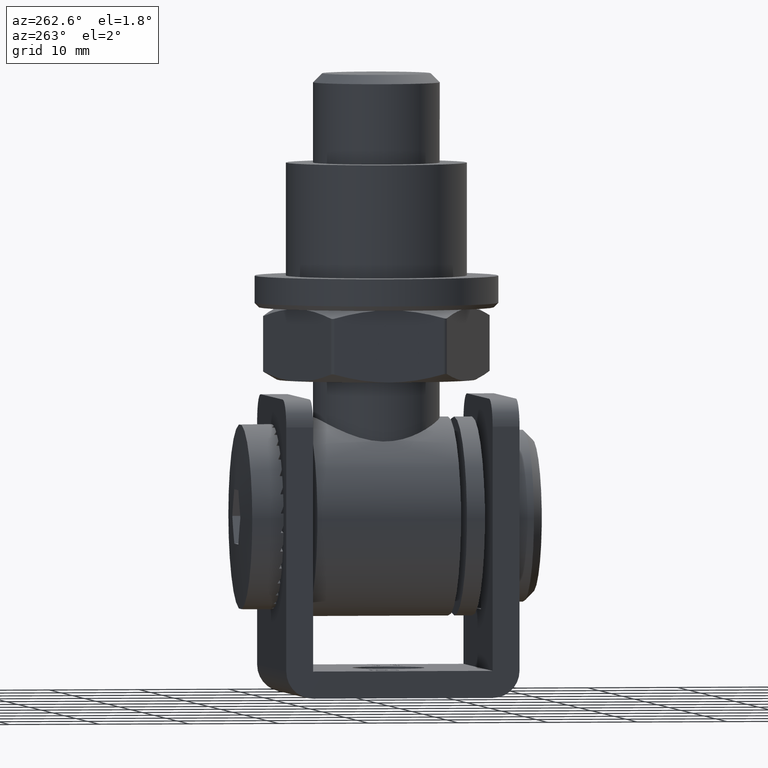
[diagram: clean part render]
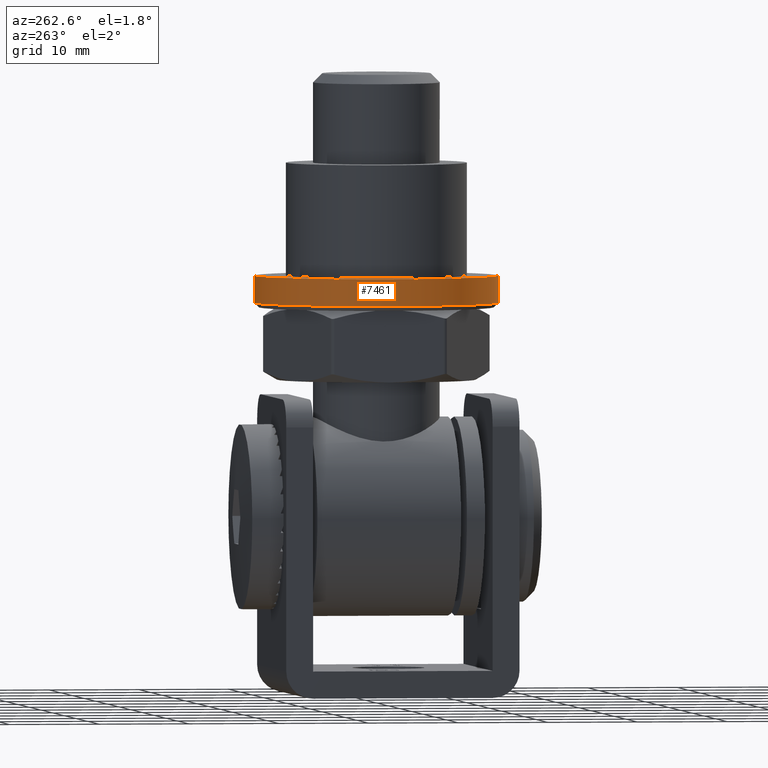
[diagram: same view with one face highlighted and labeled with its STEP entity id]
A machine part, auxiliary view. The second image highlights one B-rep face of the part: STEP entity #7461.
In plain terms, the highlighted cylindrical surface (bore or boss wall) has radius 13.5 mm, axis along (0, 0, 1).
Its self-contained STEP definition (entity closure, byte-faithful):
#523 = CARTESIAN_POINT ( 'NONE',  ( 0.000000000000000000, 0.000000000000000000, -4.500000000000003553 ) ) ;
#524 = DIRECTION ( 'NONE',  ( 1.000000000000000000, 0.000000000000000000, 0.000000000000000000 ) ) ;
#686 = VERTEX_POINT ( 'NONE', #20051 ) ;
#1185 = AXIS2_PLACEMENT_3D ( 'NONE', #6890, #5136, #14880 ) ;
#1242 = FACE_OUTER_BOUND ( 'NONE', #19374, .T. ) ;
#3822 = CYLINDRICAL_SURFACE ( 'NONE', #1185, 13.49999999999999822 ) ;
#5136 = DIRECTION ( 'NONE',  ( -0.000000000000000000, -0.000000000000000000, 1.000000000000000000 ) ) ;
#5222 = CIRCLE ( 'NONE', #15822, 13.49999999999999822 ) ;
#5478 = DIRECTION ( 'NONE',  ( -0.000000000000000000, -0.000000000000000000, 1.000000000000000000 ) ) ;
#6854 = CARTESIAN_POINT ( 'NONE',  ( 13.49999999999999822, 0.000000000000000000, -7.500000000000007105 ) ) ;
#6890 = CARTESIAN_POINT ( 'NONE',  ( 0.000000000000000000, 0.000000000000000000, 8.000000000000007105 ) ) ;
#7461 = ADVANCED_FACE ( 'NONE', ( #12216, #1242 ), #3822, .T. ) ;
#9920 = ORIENTED_EDGE ( 'NONE', *, *, #11440, .T. ) ;
#10177 = ORIENTED_EDGE ( 'NONE', *, *, #12491, .F. ) ;
#10989 = CIRCLE ( 'NONE', #15530, 13.49999999999999822 ) ;
#11440 = EDGE_CURVE ( 'NONE', #17065, #17065, #10989, .T. ) ;
#12216 = FACE_OUTER_BOUND ( 'NONE', #14619, .T. ) ;
#12491 = EDGE_CURVE ( 'NONE', #686, #686, #5222, .T. ) ;
#14619 = EDGE_LOOP ( 'NONE', ( #9920 ) ) ;
#14880 = DIRECTION ( 'NONE',  ( 1.000000000000000000, 0.000000000000000000, 0.000000000000000000 ) ) ;
#14954 = CARTESIAN_POINT ( 'NONE',  ( 0.000000000000000000, 0.000000000000000000, -7.500000000000007105 ) ) ;
#15164 = DIRECTION ( 'NONE',  ( -0.000000000000000000, -0.000000000000000000, 1.000000000000000000 ) ) ;
#15530 = AXIS2_PLACEMENT_3D ( 'NONE', #14954, #15164, #524 ) ;
#15822 = AXIS2_PLACEMENT_3D ( 'NONE', #523, #5478, #20180 ) ;
#17065 = VERTEX_POINT ( 'NONE', #6854 ) ;
#19374 = EDGE_LOOP ( 'NONE', ( #10177 ) ) ;
#20051 = CARTESIAN_POINT ( 'NONE',  ( 13.49999999999999822, 0.000000000000000000, -4.500000000000003553 ) ) ;
#20180 = DIRECTION ( 'NONE',  ( 1.000000000000000000, 0.000000000000000000, 0.000000000000000000 ) ) ;